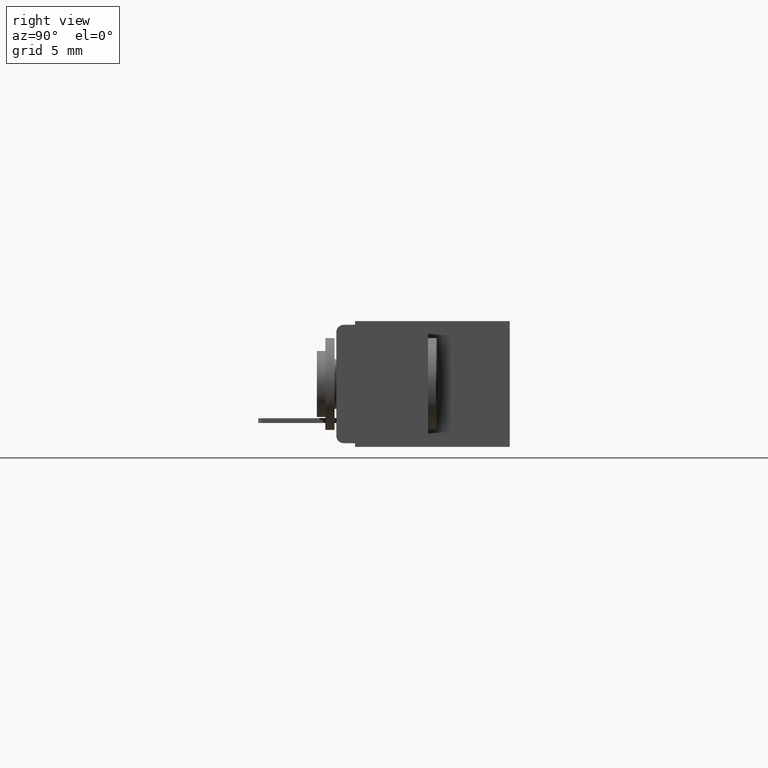
[diagram: clean part render]
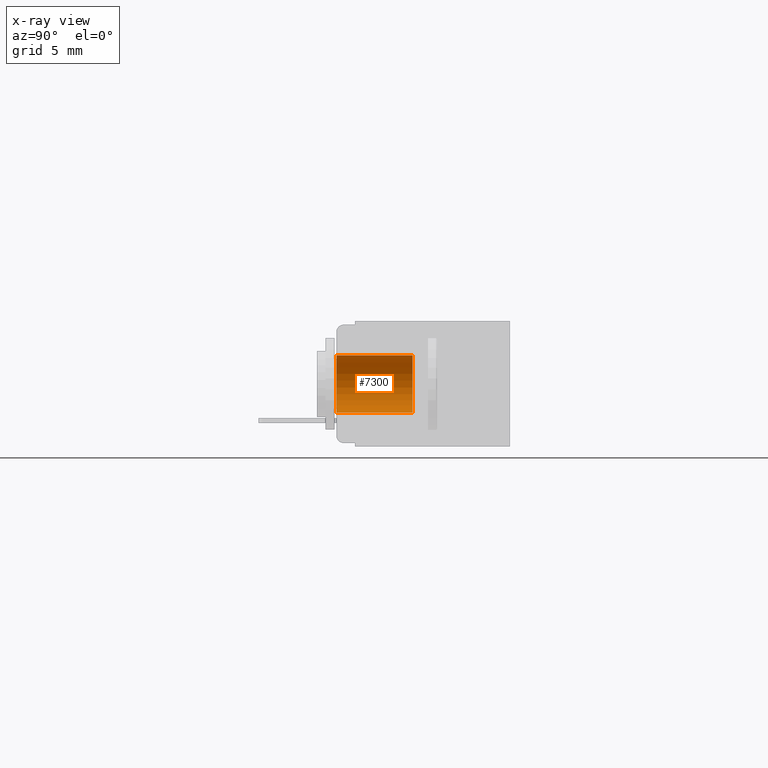
[diagram: x-ray — body ghosted, one internal face saturated and labeled with its STEP entity id]
A machine part, right view, then the same camera in x-ray: the body is ghosted and one INTERNAL B-rep face — a face not visible from any outside direction — is saturated and labeled: STEP entity #7300.
In plain terms, the highlighted cylindrical surface (edge-blend (fillet) strip) has radius 1.9812 mm, axis along (-0, -1, -0).
Its self-contained STEP definition (entity closure, byte-faithful):
#449 = CARTESIAN_POINT ( 'NONE',  ( 1.686999999999999800, 0.0000000000000000000, -0.09349999999999995800 ) ) ;
#1192 = EDGE_LOOP ( 'NONE', ( #1547, #2587, #6802, #7065 ) ) ;
#1547 = ORIENTED_EDGE ( 'NONE', *, *, #5151, .F. ) ;
#2008 = CIRCLE ( 'NONE', #8478, 0.07800000000000008300 ) ;
#2561 = DIRECTION ( 'NONE',  ( -0.0000000000000000000, -1.000000000000000000, -0.0000000000000000000 ) ) ;
#2587 = ORIENTED_EDGE ( 'NONE', *, *, #6974, .T. ) ;
#2901 = DIRECTION ( 'NONE',  ( 0.0000000000000000000, 0.0000000000000000000, -1.000000000000000000 ) ) ;
#3133 = DIRECTION ( 'NONE',  ( -0.0000000000000000000, -1.000000000000000000, -0.0000000000000000000 ) ) ;
#3435 = CYLINDRICAL_SURFACE ( 'NONE', #5358, 0.07800000000000006900 ) ;
#3482 = CARTESIAN_POINT ( 'NONE',  ( 1.686999999999999800, 0.2079999999999999300, -0.2495000000000001100 ) ) ;
#3736 = DIRECTION ( 'NONE',  ( -0.0000000000000000000, -1.000000000000000000, -0.0000000000000000000 ) ) ;
#3789 = VECTOR ( 'NONE', #3133, 39.37007874015748100 ) ;
#3938 = FACE_OUTER_BOUND ( 'NONE', #1192, .T. ) ;
#4139 = CARTESIAN_POINT ( 'NONE',  ( 1.686999999999999800, 0.0000000000000000000, -0.1715000000000000400 ) ) ;
#4382 = AXIS2_PLACEMENT_3D ( 'NONE', #9088, #2561, #5498 ) ;
#4847 = LINE ( 'NONE', #7361, #6748 ) ;
#4963 = DIRECTION ( 'NONE',  ( -0.0000000000000000000, -1.000000000000000000, -0.0000000000000000000 ) ) ;
#4982 = DIRECTION ( 'NONE',  ( 0.0000000000000000000, 0.0000000000000000000, 1.000000000000000000 ) ) ;
#5151 = EDGE_CURVE ( 'NONE', #8132, #8484, #6166, .T. ) ;
#5358 = AXIS2_PLACEMENT_3D ( 'NONE', #8522, #3736, #2901 ) ;
#5498 = DIRECTION ( 'NONE',  ( 0.0000000000000000000, 0.0000000000000000000, 1.000000000000000000 ) ) ;
#5976 = LINE ( 'NONE', #7959, #3789 ) ;
#6156 = VERTEX_POINT ( 'NONE', #9899 ) ;
#6166 = CIRCLE ( 'NONE', #4382, 0.07800000000000008300 ) ;
#6748 = VECTOR ( 'NONE', #4963, 39.37007874015748100 ) ;
#6802 = ORIENTED_EDGE ( 'NONE', *, *, #8156, .T. ) ;
#6974 = EDGE_CURVE ( 'NONE', #8132, #7284, #4847, .T. ) ;
#7065 = ORIENTED_EDGE ( 'NONE', *, *, #8860, .F. ) ;
#7284 = VERTEX_POINT ( 'NONE', #449 ) ;
#7300 = ADVANCED_FACE ( 'NONE', ( #3938 ), #3435, .F. ) ;
#7361 = CARTESIAN_POINT ( 'NONE',  ( 1.686999999999999800, 0.4729999999999999800, -0.09349999999999995800 ) ) ;
#7959 = CARTESIAN_POINT ( 'NONE',  ( 1.686999999999999800, 0.4729999999999999800, -0.2495000000000001100 ) ) ;
#8065 = CARTESIAN_POINT ( 'NONE',  ( 1.686999999999999800, 0.2079999999999999300, -0.09349999999999995800 ) ) ;
#8132 = VERTEX_POINT ( 'NONE', #8065 ) ;
#8156 = EDGE_CURVE ( 'NONE', #7284, #6156, #2008, .T. ) ;
#8478 = AXIS2_PLACEMENT_3D ( 'NONE', #4139, #9753, #4982 ) ;
#8484 = VERTEX_POINT ( 'NONE', #3482 ) ;
#8522 = CARTESIAN_POINT ( 'NONE',  ( 1.686999999999999800, 0.4729999999999999800, -0.1715000000000000400 ) ) ;
#8860 = EDGE_CURVE ( 'NONE', #8484, #6156, #5976, .T. ) ;
#9088 = CARTESIAN_POINT ( 'NONE',  ( 1.686999999999999800, 0.2079999999999999300, -0.1715000000000000400 ) ) ;
#9753 = DIRECTION ( 'NONE',  ( 0.0000000000000000000, -1.000000000000000000, 0.0000000000000000000 ) ) ;
#9899 = CARTESIAN_POINT ( 'NONE',  ( 1.686999999999999800, 0.0000000000000000000, -0.2495000000000001100 ) ) ;